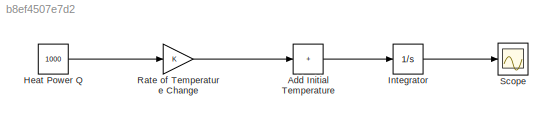
MODEL slx_b8ef4507e7d2
KIND model
CONFIG AbsTol = auto
CONFIG EnableMultiTasking = off
CONFIG FixedStep = auto
CONFIG MaxStep = auto
CONFIG MinStep = auto
CONFIG RelTol = 1e-3
CONFIG SampleTimeConstraint = Unconstrained
CONFIG SolverName = VariableStepAuto
CONFIG StartTime = 0.0
CONFIG StopTime = 10.0
BLOCK [Sum] Add Initial Temperature
  IconShape = rectangular
  Inputs = +
BLOCK [Constant] Heat Power Q
  Value = 1000
BLOCK [Integrator] Integrator
BLOCK [Gain] Rate of Temperature Change
BLOCK [Scope] Scope
  Floating = off
  NumInputPorts = 1
  ScopeSpecificationString = Simulink.scopes.TimeScopeBlockCfg('CurrentConfiguration', extmgr.ConfigurationSet(extmgr.Configuration('Core','General UI',true),extmgr.Configuration('Core','Source UI',true),extmgr.Configuration('Sources','WiredSimulink',true),extmgr.Configuration('Visuals','Time Domain',true,'SerializedDisplays',{struct('MinYLimReal','-1250.00000','MaxYLimReal','11250.00000','YLabelReal','','MinYLimMag','  0.000...<+1505ch>
LINE Add Initial Temperature:1 -> Integrator:1
LINE Heat Power Q:1 -> Rate of Temperature Change:1
LINE Integrator:1 -> Scope:1
LINE Rate of Temperature Change:1 -> Add Initial Temperature:1
